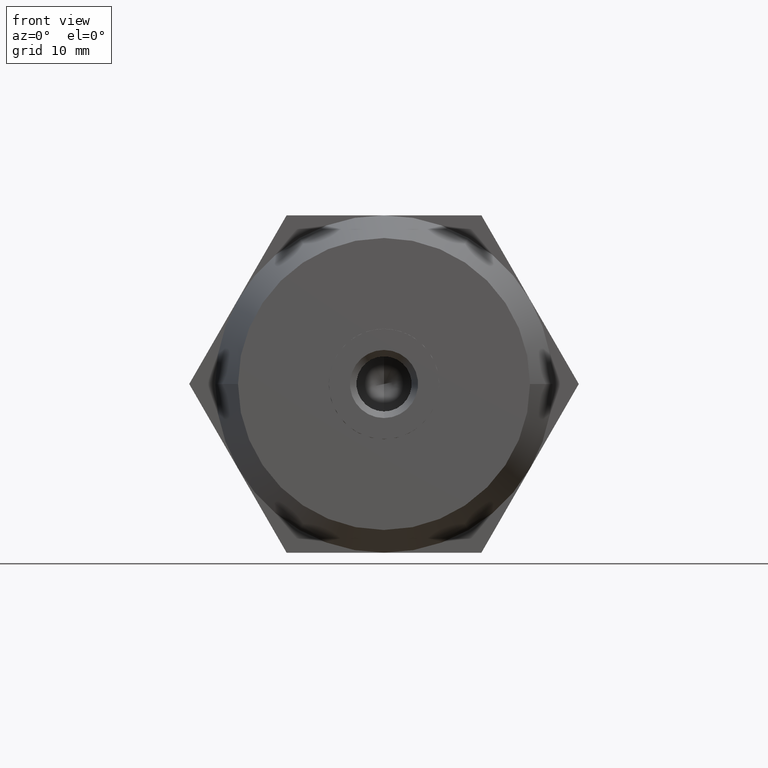
[diagram: clean part render]
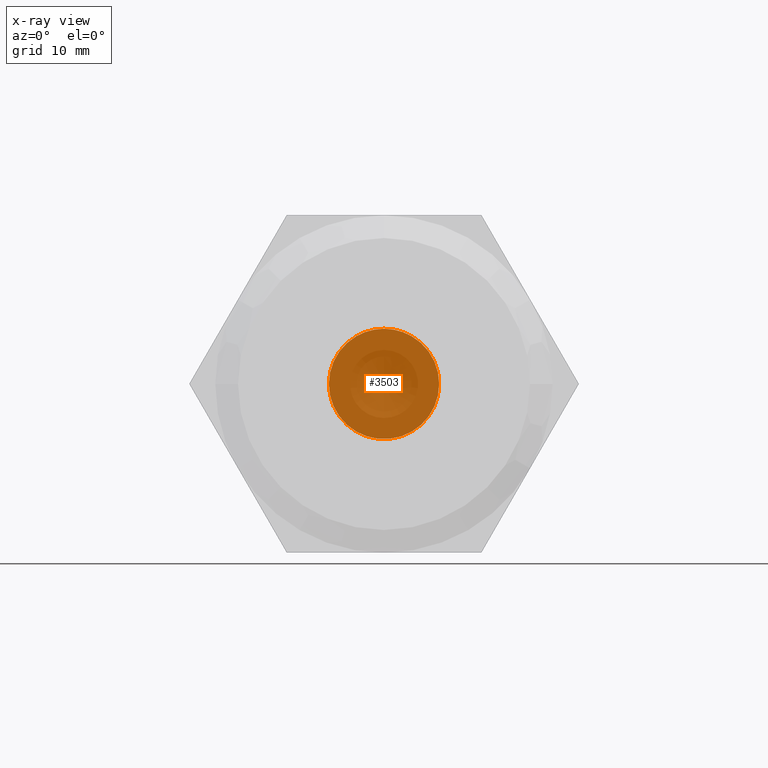
[diagram: x-ray — body ghosted, one internal face saturated and labeled with its STEP entity id]
A machine part, front view, then the same camera in x-ray: the body is ghosted and one INTERNAL B-rep face — a face not visible from any outside direction — is saturated and labeled: STEP entity #3503.
In plain terms, the highlighted planar face has unit normal (0, 1, 0).
Its self-contained STEP definition (entity closure, byte-faithful):
#3 = DIRECTION ( 'NONE',  ( -0.0000000000000000000, -1.000000000000000000, -0.0000000000000000000 ) ) ;
#14 = DIRECTION ( 'NONE',  ( 1.776356839400250500E-015, 0.0000000000000000000, 1.000000000000000000 ) ) ;
#36 = EDGE_CURVE ( 'NONE', #1632, #791, #835, .T. ) ;
#122 = VERTEX_POINT ( 'NONE', #1268 ) ;
#223 = DIRECTION ( 'NONE',  ( -0.0000000000000000000, -1.000000000000000000, -0.0000000000000000000 ) ) ;
#246 = DIRECTION ( 'NONE',  ( -0.0000000000000000000, -1.000000000000000000, -0.0000000000000000000 ) ) ;
#254 = DIRECTION ( 'NONE',  ( -0.0000000000000000000, -1.000000000000000000, -0.0000000000000000000 ) ) ;
#276 = CARTESIAN_POINT ( 'NONE',  ( 0.0000000000000000000, 23.00999999999999800, 0.0000000000000000000 ) ) ;
#441 = AXIS2_PLACEMENT_3D ( 'NONE', #2345, #2064, #2683 ) ;
#490 = DIRECTION ( 'NONE',  ( -0.0000000000000000000, -1.000000000000000000, -0.0000000000000000000 ) ) ;
#576 = DIRECTION ( 'NONE',  ( -0.0000000000000000000, -1.000000000000000000, -0.0000000000000000000 ) ) ;
#629 = DIRECTION ( 'NONE',  ( 0.0000000000000000000, 0.0000000000000000000, 1.000000000000000000 ) ) ;
#753 = CARTESIAN_POINT ( 'NONE',  ( 0.0000000000000000000, 23.00999999999999800, 8.500000000000000000 ) ) ;
#791 = VERTEX_POINT ( 'NONE', #2488 ) ;
#835 = CIRCLE ( 'NONE', #3075, 8.500000000000000000 ) ;
#1017 = CIRCLE ( 'NONE', #2514, 8.500000000000000000 ) ;
#1036 = AXIS2_PLACEMENT_3D ( 'NONE', #3304, #223, #3615 ) ;
#1104 = ORIENTED_EDGE ( 'NONE', *, *, #2205, .F. ) ;
#1112 = CARTESIAN_POINT ( 'NONE',  ( -4.250000000000000000, 23.00999999999999800, 7.361215932167730200 ) ) ;
#1133 = EDGE_LOOP ( 'NONE', ( #3566, #1210, #1104, #3311, #1311, #2857, #2363 ) ) ;
#1210 = ORIENTED_EDGE ( 'NONE', *, *, #2297, .F. ) ;
#1268 = CARTESIAN_POINT ( 'NONE',  ( 4.249999999999940500, 23.00999999999895000, 7.361215932167759500 ) ) ;
#1311 = ORIENTED_EDGE ( 'NONE', *, *, #3285, .F. ) ;
#1412 = AXIS2_PLACEMENT_3D ( 'NONE', #2041, #490, #2365 ) ;
#1481 = CARTESIAN_POINT ( 'NONE',  ( 8.500000000000000000, 23.00999999999999800, 0.0000000000000000000 ) ) ;
#1491 = CIRCLE ( 'NONE', #2781, 8.500000000000000000 ) ;
#1632 = VERTEX_POINT ( 'NONE', #3619 ) ;
#1723 = VERTEX_POINT ( 'NONE', #1112 ) ;
#1733 = CIRCLE ( 'NONE', #1412, 8.500000000000000000 ) ;
#1969 = CIRCLE ( 'NONE', #441, 8.500000000000000000 ) ;
#2041 = CARTESIAN_POINT ( 'NONE',  ( 0.0000000000000000000, 23.00999999999999800, 0.0000000000000000000 ) ) ;
#2064 = DIRECTION ( 'NONE',  ( -0.0000000000000000000, -1.000000000000000000, -0.0000000000000000000 ) ) ;
#2140 = AXIS2_PLACEMENT_3D ( 'NONE', #3328, #246, #3647 ) ;
#2205 = EDGE_CURVE ( 'NONE', #791, #3289, #1969, .T. ) ;
#2284 = EDGE_CURVE ( 'NONE', #122, #2942, #1491, .T. ) ;
#2297 = EDGE_CURVE ( 'NONE', #3289, #122, #1017, .T. ) ;
#2345 = CARTESIAN_POINT ( 'NONE',  ( 0.0000000000000000000, 23.00999999999999800, 0.0000000000000000000 ) ) ;
#2350 = CIRCLE ( 'NONE', #2140, 8.500000000000000000 ) ;
#2363 = ORIENTED_EDGE ( 'NONE', *, *, #3265, .F. ) ;
#2365 = DIRECTION ( 'NONE',  ( 0.0000000000000000000, 0.0000000000000000000, 1.000000000000000000 ) ) ;
#2441 = CARTESIAN_POINT ( 'NONE',  ( 0.0000000000000000000, 23.00999999999999800, 0.0000000000000000000 ) ) ;
#2456 = DIRECTION ( 'NONE',  ( 0.0000000000000000000, 1.000000000000000000, 0.0000000000000000000 ) ) ;
#2488 = CARTESIAN_POINT ( 'NONE',  ( 4.250000000000060400, 23.00999999999895000, -7.361215932167700000 ) ) ;
#2514 = AXIS2_PLACEMENT_3D ( 'NONE', #276, #576, #2722 ) ;
#2663 = FACE_OUTER_BOUND ( 'NONE', #1133, .T. ) ;
#2683 = DIRECTION ( 'NONE',  ( 0.0000000000000000000, 0.0000000000000000000, 1.000000000000000000 ) ) ;
#2706 = AXIS2_PLACEMENT_3D ( 'NONE', #2441, #2456, #629 ) ;
#2722 = DIRECTION ( 'NONE',  ( 8.881784197001252300E-016, 0.0000000000000000000, 1.000000000000000000 ) ) ;
#2781 = AXIS2_PLACEMENT_3D ( 'NONE', #3011, #254, #3312 ) ;
#2857 = ORIENTED_EDGE ( 'NONE', *, *, #3013, .F. ) ;
#2927 = CIRCLE ( 'NONE', #1036, 8.500000000000000000 ) ;
#2942 = VERTEX_POINT ( 'NONE', #753 ) ;
#3004 = VERTEX_POINT ( 'NONE', #3545 ) ;
#3011 = CARTESIAN_POINT ( 'NONE',  ( 0.0000000000000000000, 23.00999999999999800, 0.0000000000000000000 ) ) ;
#3013 = EDGE_CURVE ( 'NONE', #1723, #3004, #1733, .T. ) ;
#3075 = AXIS2_PLACEMENT_3D ( 'NONE', #3333, #3, #14 ) ;
#3265 = EDGE_CURVE ( 'NONE', #2942, #1723, #2927, .T. ) ;
#3285 = EDGE_CURVE ( 'NONE', #3004, #1632, #2350, .T. ) ;
#3289 = VERTEX_POINT ( 'NONE', #1481 ) ;
#3304 = CARTESIAN_POINT ( 'NONE',  ( 0.0000000000000000000, 23.00999999999999800, 0.0000000000000000000 ) ) ;
#3311 = ORIENTED_EDGE ( 'NONE', *, *, #36, .F. ) ;
#3312 = DIRECTION ( 'NONE',  ( -2.664535259100376100E-015, 0.0000000000000000000, 1.000000000000000000 ) ) ;
#3328 = CARTESIAN_POINT ( 'NONE',  ( 0.0000000000000000000, 23.00999999999999800, 0.0000000000000000000 ) ) ;
#3333 = CARTESIAN_POINT ( 'NONE',  ( 0.0000000000000000000, 23.00999999999999800, 0.0000000000000000000 ) ) ;
#3503 = ADVANCED_FACE ( 'NONE', ( #2663 ), #3727, .T. ) ;
#3545 = CARTESIAN_POINT ( 'NONE',  ( -8.500000000000000000, 23.00999999999999800, 0.0000000000000000000 ) ) ;
#3566 = ORIENTED_EDGE ( 'NONE', *, *, #2284, .F. ) ;
#3615 = DIRECTION ( 'NONE',  ( 0.0000000000000000000, 0.0000000000000000000, 1.000000000000000000 ) ) ;
#3619 = CARTESIAN_POINT ( 'NONE',  ( -4.249999999999935200, 23.00999999999895000, -7.361215932167759500 ) ) ;
#3647 = DIRECTION ( 'NONE',  ( 0.0000000000000000000, 0.0000000000000000000, 1.000000000000000000 ) ) ;
#3727 = PLANE ( 'NONE',  #2706 ) ;